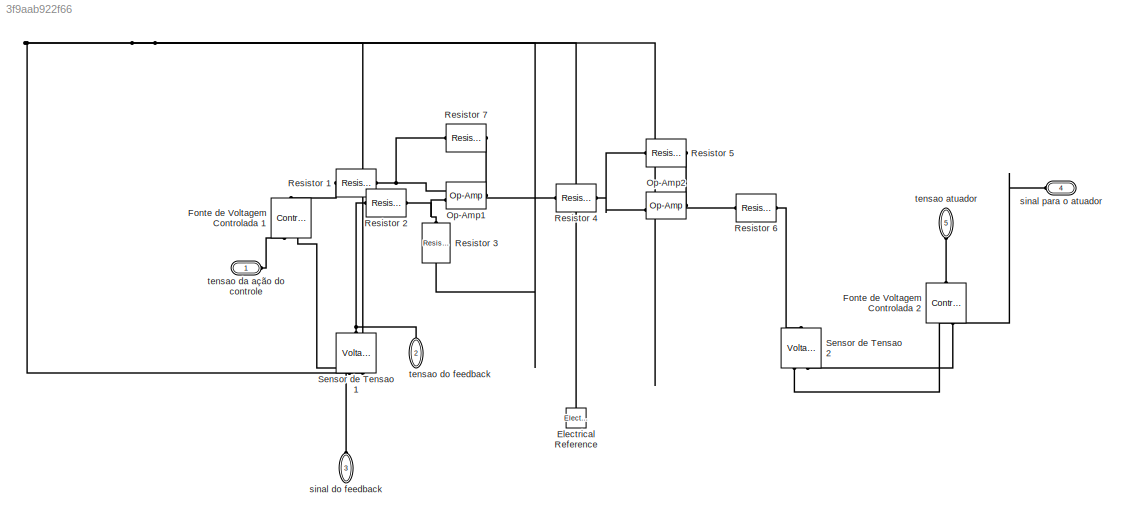
MODEL slx_3f9aab922f66
KIND model
CONFIG AbsTol = auto
CONFIG EnableMultiTasking = off
CONFIG FixedStep = auto
CONFIG MaxStep = auto
CONFIG MinStep = auto
CONFIG RelTol = 1e-3
CONFIG SampleTimeConstraint = Unconstrained
CONFIG Solver = VariableStepAuto
CONFIG SolverName = VariableStepAuto
CONFIG StartTime = 0.0
CONFIG StopTime = 10.0
BLOCK [Reference] Electrical Reference  REF=fl_lib/Electrical/Electrical Elements/Electrical Reference
  NameLocation = right
  Ports = [0, 0, 0, 0, 0, 1]
  SourceBlock = fl_lib/Electrical/Electrical Elements/Electrical Reference
  SourceType = Electrical Reference
BLOCK [Reference] Fonte de Voltagem Controlada 1  REF=fl_lib/Electrical/Electrical Sources/Controlled Voltage
Source
  NameLocation = left
  Ports = [0, 0, 0, 0, 0, 1, 2]
  SourceBlock = fl_lib/Electrical/Electrical Sources/Controlled Voltage\nSource
  SourceType = Controlled Voltage\nSource
BLOCK [Reference] Fonte de Voltagem Controlada 2  REF=fl_lib/Electrical/Electrical Sources/Controlled Voltage
Source
  NameLocation = right
  Ports = [0, 0, 0, 0, 0, 1, 2]
  SourceBlock = fl_lib/Electrical/Electrical Sources/Controlled Voltage\nSource
  SourceType = Controlled Voltage\nSource
BLOCK [Reference] Op-Amp1  REF=fl_lib/Electrical/Electrical Elements/Op-Amp
  Ports = [0, 0, 0, 0, 0, 2, 1]
  SourceBlock = fl_lib/Electrical/Electrical Elements/Op-Amp
  SourceType = Op-Amp
BLOCK [Reference] Op-Amp2  REF=fl_lib/Electrical/Electrical Elements/Op-Amp
  Ports = [0, 0, 0, 0, 0, 2, 1]
  SourceBlock = fl_lib/Electrical/Electrical Elements/Op-Amp
  SourceType = Op-Amp
BLOCK [Reference] Resistor 1  REF=fl_lib/Electrical/Electrical Elements/Resistor
  NameLocation = top
  Ports = [0, 0, 0, 0, 0, 1, 1]
  SourceBlock = fl_lib/Electrical/Electrical Elements/Resistor
  SourceType = Resistor
BLOCK [Reference] Resistor 2  REF=fl_lib/Electrical/Electrical Elements/Resistor
  Ports = [0, 0, 0, 0, 0, 1, 1]
  SourceBlock = fl_lib/Electrical/Electrical Elements/Resistor
  SourceType = Resistor
BLOCK [Reference] Resistor 3  REF=fl_lib/Electrical/Electrical Elements/Resistor
  NameLocation = right
  Ports = [0, 0, 0, 0, 0, 1, 1]
  SourceBlock = fl_lib/Electrical/Electrical Elements/Resistor
  SourceType = Resistor
BLOCK [Reference] Resistor 4  REF=fl_lib/Electrical/Electrical Elements/Resistor
  Ports = [0, 0, 0, 0, 0, 1, 1]
  SourceBlock = fl_lib/Electrical/Electrical Elements/Resistor
  SourceType = Resistor
BLOCK [Reference] Resistor 5  REF=fl_lib/Electrical/Electrical Elements/Resistor
  NameLocation = top
  Ports = [0, 0, 0, 0, 0, 1, 1]
  SourceBlock = fl_lib/Electrical/Electrical Elements/Resistor
  SourceType = Resistor
BLOCK [Reference] Resistor 6  REF=fl_lib/Electrical/Electrical Elements/Resistor
  Ports = [0, 0, 0, 0, 0, 1, 1]
  SourceBlock = fl_lib/Electrical/Electrical Elements/Resistor
  SourceType = Resistor
BLOCK [Reference] Resistor 7  REF=fl_lib/Electrical/Electrical Elements/Resistor
  NameLocation = top
  Ports = [0, 0, 0, 0, 0, 1, 1]
  SourceBlock = fl_lib/Electrical/Electrical Elements/Resistor
  SourceType = Resistor
BLOCK [Reference] Sensor de Tensao 1  REF=fl_lib/Electrical/Electrical Sensors/Voltage Sensor
  NameLocation = left
  Ports = [0, 0, 0, 0, 0, 1, 2]
  SourceBlock = fl_lib/Electrical/Electrical Sensors/Voltage Sensor
  SourceType = Voltage Sensor
BLOCK [Reference] Sensor de Tensao 2  REF=fl_lib/Electrical/Electrical Sensors/Voltage Sensor
  NameLocation = right
  Ports = [0, 0, 0, 0, 0, 1, 2]
  SourceBlock = fl_lib/Electrical/Electrical Sensors/Voltage Sensor
  SourceType = Voltage Sensor
BLOCK [PMIOPort] sinal do feedback
  NameLocation = right
  Port = 3
  Side = Left
BLOCK [PMIOPort] sinal para o atuador
  NameLocation = top
  Port = 4
  Side = Left
BLOCK [PMIOPort] tensao atuador
  NameLocation = right
  Port = 5
  Side = Left
BLOCK [PMIOPort] tensao da ação do controle
  Side = Left
BLOCK [PMIOPort] tensao do feedback
  NameLocation = right
  Port = 2
  Side = Left
PNET net1: Electrical Reference:LConn1 -- Fonte de Voltagem Controlada 1:RConn2 -- Fonte de Voltagem Controlada 2:RConn2 -- Op-Amp2:LConn1 -- Resistor 3:RConn1 -- Sensor de Tensao 1:RConn2 -- Sensor de Tensao 2:RConn2
PLINE Fonte de Voltagem Controlada 1:LConn1 -- Resistor 1:LConn1
PLINE Fonte de Voltagem Controlada 1:RConn1 -- tensao da ação do controle:RConn1
PLINE Fonte de Voltagem Controlada 2:LConn1 -- tensao atuador:RConn1
PNET net2: Fonte de Voltagem Controlada 2:RConn1 -- Sensor de Tensao 2:RConn1 -- sinal para o atuador:RConn1
PNET net3: Op-Amp1:LConn1 -- Resistor 1:RConn1 -- Resistor 7:LConn1
PNET net4: Op-Amp1:LConn2 -- Resistor 2:RConn1 -- Resistor 3:LConn1
PNET net5: Op-Amp1:RConn1 -- Resistor 4:LConn1 -- Resistor 7:RConn1
PNET net6: Op-Amp2:LConn2 -- Resistor 4:RConn1 -- Resistor 5:LConn1
PNET net7: Op-Amp2:RConn1 -- Resistor 5:RConn1 -- Resistor 6:LConn1
PNET net8: Resistor 2:LConn1 -- Sensor de Tensao 1:LConn1 -- tensao do feedback:RConn1
PLINE Resistor 6:RConn1 -- Sensor de Tensao 2:LConn1
PLINE Sensor de Tensao 1:RConn1 -- sinal do feedback:RConn1
note: PNET lines group multi-terminal physical nets as a canonical sorted terminal list (undirected conserving connections); 2-terminal nets keep the pairwise PLINE form
